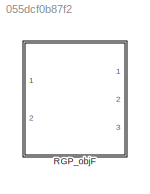
MODEL slx_055dcf0b87f2
KIND library
CONFIG AbsTol = auto
CONFIG EnableMultiTasking = off
CONFIG FixedStep = auto
CONFIG MaxStep = auto
CONFIG MinStep = auto
CONFIG RelTol = 1e-3
CONFIG SampleTimeConstraint = Unconstrained
CONFIG Solver = VariableStepAuto
CONFIG SolverName = VariableStepAuto
CONFIG StartTime = 0.0
CONFIG StopTime = 10.0
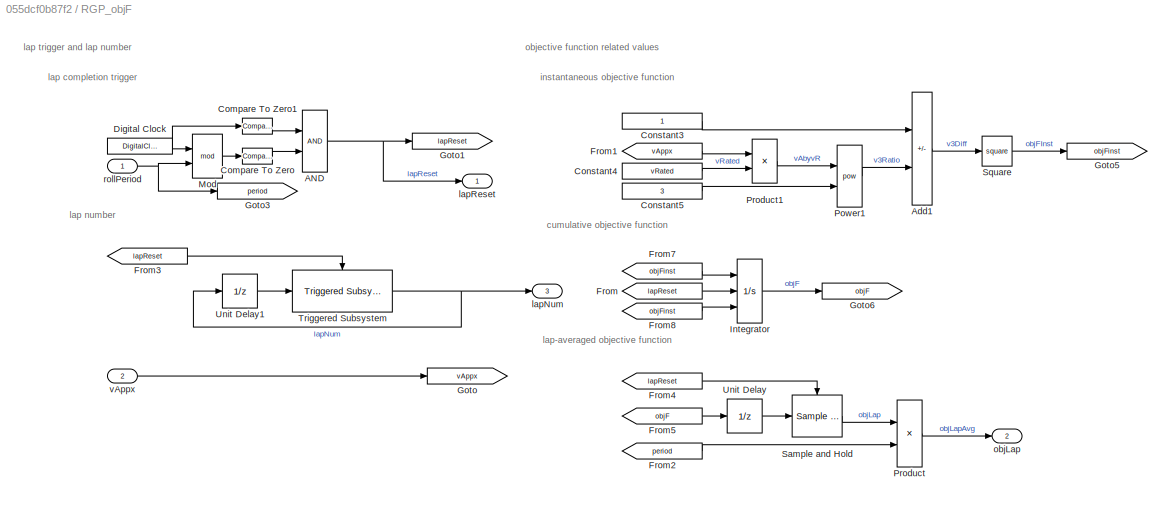
BLOCK [SubSystem] RGP_objF
  Ports = [2, 3]
  RequestExecContextInheritance = off
BLOCK [Logic] RGP_objF/AND
  AllPortsSameDT = off
  OutDataTypeStr = boolean
  Ports = [2, 1]
BLOCK [Sum] RGP_objF/Add1
  IconShape = rectangular
  Inputs = +-
  Ports = [2, 1]
BLOCK [Reference] RGP_objF/Compare To Zero  REF=simulink/Logic and Bit
Operations/Compare
To Zero
  Ports = [1, 1]
  SourceBlock = simulink/Logic and Bit\nOperations/Compare\nTo Zero
  SourceProductBaseCode = SL
  SourceType = Compare To Zero
BLOCK [Reference] RGP_objF/Compare To Zero1  REF=simulink/Logic and Bit
Operations/Compare
To Zero
  Ports = [1, 1]
  SourceBlock = simulink/Logic and Bit\nOperations/Compare\nTo Zero
  SourceProductBaseCode = SL
  SourceType = Compare To Zero
BLOCK [Constant] RGP_objF/Constant3
BLOCK [Constant] RGP_objF/Constant4
  Value = vRated
  VectorParams1D = off
BLOCK [Constant] RGP_objF/Constant5
  Value = 3
BLOCK [DigitalClock] RGP_objF/Digital Clock
BLOCK [From] RGP_objF/From
  GotoTag = lapReset
BLOCK [From] RGP_objF/From1
  GotoTag = vAppx
BLOCK [From] RGP_objF/From2
  GotoTag = period
BLOCK [From] RGP_objF/From3
  GotoTag = lapReset
BLOCK [From] RGP_objF/From4
  GotoTag = lapReset
BLOCK [From] RGP_objF/From5
  GotoTag = objF
BLOCK [From] RGP_objF/From7
  GotoTag = objFinst
BLOCK [From] RGP_objF/From8
  GotoTag = objFinst
BLOCK [Goto] RGP_objF/Goto
  GotoTag = vAppx
BLOCK [Goto] RGP_objF/Goto1
  GotoTag = lapReset
BLOCK [Goto] RGP_objF/Goto3
  GotoTag = period
BLOCK [Goto] RGP_objF/Goto5
  GotoTag = objFinst
BLOCK [Goto] RGP_objF/Goto6
  GotoTag = objF
BLOCK [Integrator] RGP_objF/Integrator
  ExternalReset = rising
  InitialConditionSource = external
  Ports = [3, 1]
BLOCK [Math] RGP_objF/Mod
  Operator = mod
  Ports = [2, 1]
BLOCK [Math] RGP_objF/Power1
  Operator = pow
  Ports = [2, 1]
BLOCK [Product] RGP_objF/Product
  Inputs = */
  Ports = [2, 1]
BLOCK [Product] RGP_objF/Product1
  Inputs = */
  Ports = [2, 1]
BLOCK [Reference] RGP_objF/Sample and Hold  REF=dspsigops/Sample
and Hold
  Ports = [1, 1, 0, 1]
  SourceBlock = dspsigops/Sample\nand Hold
  SourceProductBaseCode = DS
  SourceType = Sample and Hold
BLOCK [Math] RGP_objF/Square
  Operator = square
  Ports = [1, 1]
BLOCK [Reference] RGP_objF/Triggered Subsystem  REF=RGP_objF_ul/RGP_objF/Triggered
Subsystem
  Ports = [1, 1, 0, 1]
  SourceBlock = RGP_objF_ul/RGP_objF/Triggered\nSubsystem
  SourceType = SubSystem
BLOCK [UnitDelay] RGP_objF/Unit Delay
  HasFrameUpgradeWarning = on
  SampleTime = -1
BLOCK [UnitDelay] RGP_objF/Unit Delay1
  HasFrameUpgradeWarning = on
  SampleTime = -1
BLOCK [Outport] RGP_objF/lapNum
  Port = 3
BLOCK [Outport] RGP_objF/lapReset
BLOCK [Outport] RGP_objF/objLap
  Port = 2
BLOCK [Inport] RGP_objF/rollPeriod
BLOCK [Inport] RGP_objF/vAppx
  Port = 2
ANNOTATION RGP_objF: cumulative objective function
ANNOTATION RGP_objF: instantaneous objective function
ANNOTATION RGP_objF: lap completion trigger
ANNOTATION RGP_objF: lap number
ANNOTATION RGP_objF: lap trigger and lap number
ANNOTATION RGP_objF: lap-averaged objective function
ANNOTATION RGP_objF: objective function related values
NET RGP_objF/AND:1 -> RGP_objF/Goto1:1, RGP_objF/lapReset:1
LINE RGP_objF/Add1:1 -> RGP_objF/Square:1
LINE RGP_objF/Compare To Zero1:1 -> RGP_objF/AND:1
LINE RGP_objF/Compare To Zero:1 -> RGP_objF/AND:2
LINE RGP_objF/Constant3:1 -> RGP_objF/Add1:1
LINE RGP_objF/Constant4:1 -> RGP_objF/Product1:2
LINE RGP_objF/Constant5:1 -> RGP_objF/Power1:2
NET RGP_objF/Digital Clock:1 -> RGP_objF/Compare To Zero1:1, RGP_objF/Mod:1
LINE RGP_objF/From1:1 -> RGP_objF/Product1:1
LINE RGP_objF/From2:1 -> RGP_objF/Product:2
LINE RGP_objF/From3:1 -> RGP_objF/Triggered Subsystem:trigger
LINE RGP_objF/From4:1 -> RGP_objF/Sample and Hold:trigger
LINE RGP_objF/From5:1 -> RGP_objF/Unit Delay:1
LINE RGP_objF/From7:1 -> RGP_objF/Integrator:1
LINE RGP_objF/From8:1 -> RGP_objF/Integrator:3
LINE RGP_objF/From:1 -> RGP_objF/Integrator:2
LINE RGP_objF/Integrator:1 -> RGP_objF/Goto6:1
LINE RGP_objF/Mod:1 -> RGP_objF/Compare To Zero:1
LINE RGP_objF/Power1:1 -> RGP_objF/Add1:2
LINE RGP_objF/Product1:1 -> RGP_objF/Power1:1
LINE RGP_objF/Product:1 -> RGP_objF/objLap:1
LINE RGP_objF/Sample and Hold:1 -> RGP_objF/Product:1
LINE RGP_objF/Square:1 -> RGP_objF/Goto5:1
NET RGP_objF/Triggered Subsystem:1 -> RGP_objF/Unit Delay1:1, RGP_objF/lapNum:1
LINE RGP_objF/Unit Delay1:1 -> RGP_objF/Triggered Subsystem:1
LINE RGP_objF/Unit Delay:1 -> RGP_objF/Sample and Hold:1
NET RGP_objF/rollPeriod:1 -> RGP_objF/Goto3:1, RGP_objF/Mod:2
LINE RGP_objF/vAppx:1 -> RGP_objF/Goto:1
note: NET lines group one-source signal fan-out (src -> all destinations, sorted); 1:1 wires keep LINE
